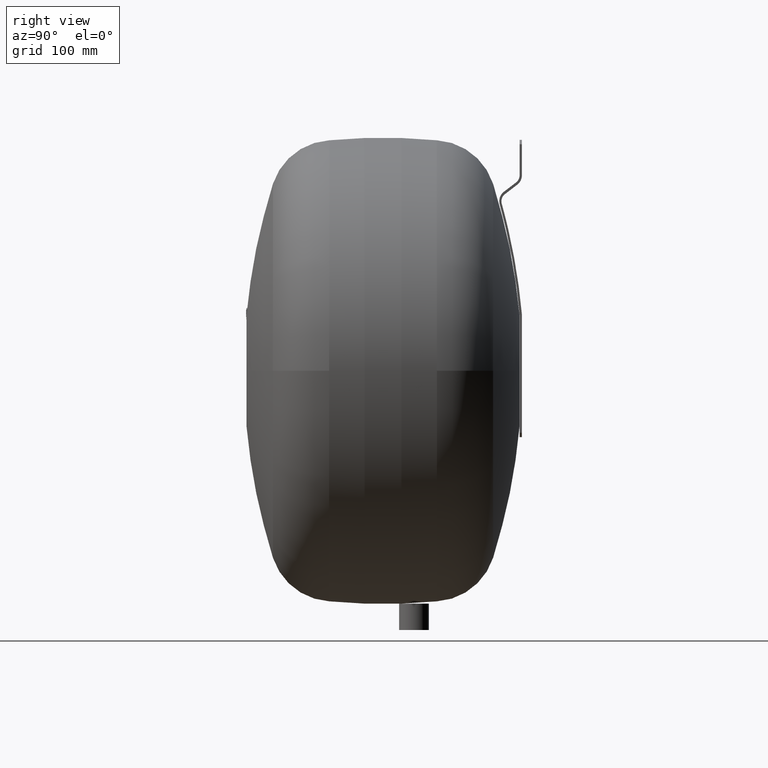
[diagram: clean part render]
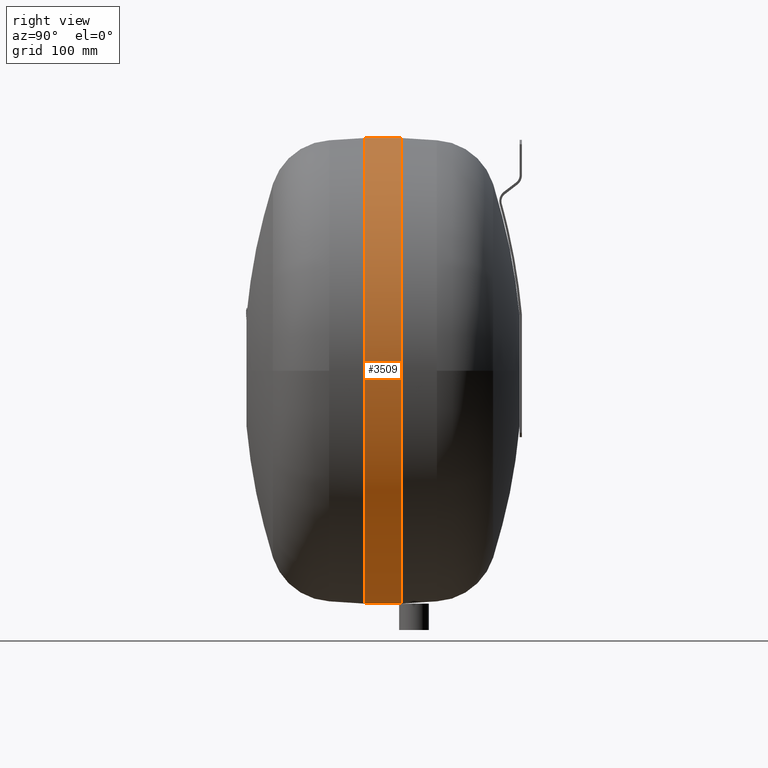
[diagram: same view with one face highlighted and labeled with its STEP entity id]
A machine part, right view. The second image highlights one B-rep face of the part: STEP entity #3509.
In plain terms, the highlighted cylindrical surface (partial cylindrical patch) has radius 203 mm, axis along (-0, -1, 0).
Its self-contained STEP definition (entity closure, byte-faithful):
#3460=CARTESIAN_POINT('',(9.888696E-015,-21.499999999999915,226.00000000000006));
#3461=DIRECTION('',(-1.836910E-016,-1.0,0.0));
#3462=DIRECTION('',(0.0,0.0,1.0));
#3463=AXIS2_PLACEMENT_3D('',#3460,#3461,#3462);
#3464=CYLINDRICAL_SURFACE('',#3463,202.99999999999997);
#3465=CARTESIAN_POINT('',(1.836910E-014,-42.999999999999872,429.00000000000011));
#3466=VERTEX_POINT('',#3465);
#3467=CARTESIAN_POINT('',(2.424721E-014,-10.999999999999948,429.00000000000006));
#3468=VERTEX_POINT('',#3467);
#3469=CARTESIAN_POINT('',(1.836910E-014,-42.999999999999872,429.0));
#3470=DIRECTION('',(0.0,1.0,0.0));
#3471=VECTOR('',#3470,31.999999999999922);
#3472=LINE('',#3469,#3471);
#3473=EDGE_CURVE('',#3466,#3468,#3472,.T.);
#3474=ORIENTED_EDGE('',*,*,#3473,.F.);
#3475=CARTESIAN_POINT('',(1.836910E-014,-42.999999999999872,23.000000000000032));
#3476=VERTEX_POINT('',#3475);
#3477=CARTESIAN_POINT('',(5.939341E-015,-42.999999999999872,226.00000000000006));
#3478=DIRECTION('',(0.0,-1.0,0.0));
#3479=DIRECTION('',(0.0,0.0,1.0));
#3480=AXIS2_PLACEMENT_3D('',#3477,#3478,#3479);
#3481=CIRCLE('',#3480,203.00000000000006);
#3482=EDGE_CURVE('',#3476,#3466,#3481,.T.);
#3483=ORIENTED_EDGE('',*,*,#3482,.F.);
#3484=CARTESIAN_POINT('',(-9.796851E-016,-12.999999999999972,23.0));
#3485=VERTEX_POINT('',#3484);
#3486=CARTESIAN_POINT('',(1.836910E-014,-42.999999999999872,23.000000000000085));
#3487=DIRECTION('',(0.0,1.0,0.0));
#3488=VECTOR('',#3487,29.999999999999901);
#3489=LINE('',#3486,#3488);
#3490=EDGE_CURVE('',#3476,#3485,#3489,.T.);
#3491=ORIENTED_EDGE('',*,*,#3490,.T.);
#3492=CARTESIAN_POINT('',(-6.123032E-016,-11.000000000001592,22.999999999999972));
#3493=VERTEX_POINT('',#3492);
#3494=CARTESIAN_POINT('',(-6.123032E-016,-11.000000000001592,23.0));
#3495=DIRECTION('',(0.0,-1.0,0.0));
#3496=VECTOR('',#3495,1.99999999999838);
#3497=LINE('',#3494,#3496);
#3498=EDGE_CURVE('',#3493,#3485,#3497,.T.);
#3499=ORIENTED_EDGE('',*,*,#3498,.F.);
#3500=CARTESIAN_POINT('',(1.181745E-014,-10.999999999999943,226.00000000000006));
#3501=DIRECTION('',(0.0,-1.0,0.0));
#3502=DIRECTION('',(0.0,0.0,1.0));
#3503=AXIS2_PLACEMENT_3D('',#3500,#3501,#3502);
#3504=CIRCLE('',#3503,202.99999999999997);
#3505=EDGE_CURVE('',#3493,#3468,#3504,.T.);
#3506=ORIENTED_EDGE('',*,*,#3505,.T.);
#3507=EDGE_LOOP('',(#3474,#3483,#3491,#3499,#3506));
#3508=FACE_OUTER_BOUND('',#3507,.T.);
#3509=ADVANCED_FACE('',(#3508),#3464,.T.);